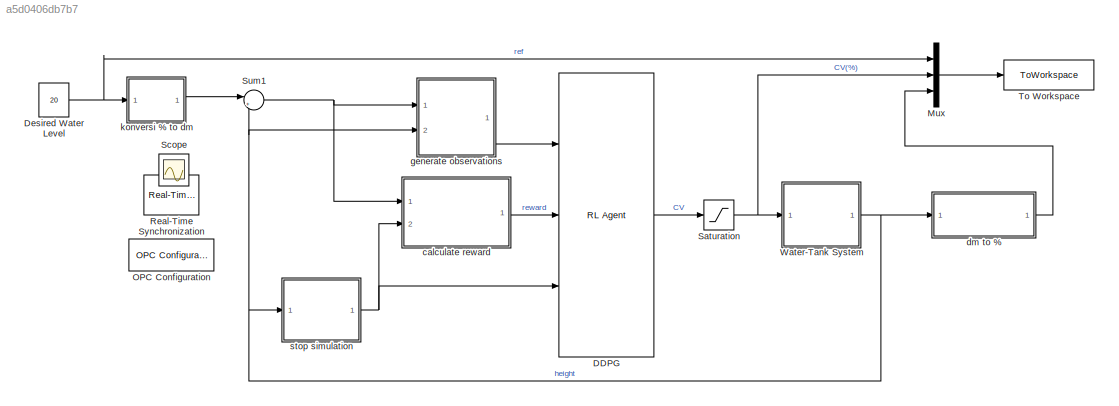
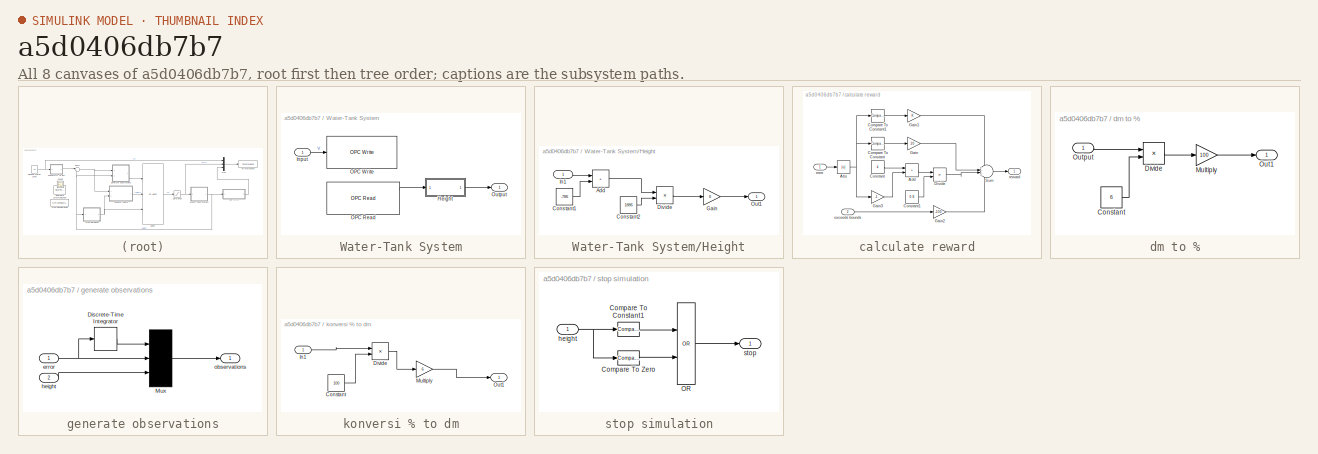
[diagram: thumbnail index - all 8 canvases of the model, root first then tree order]
MODEL slx_a5d0406db7b7
KIND model
CONFIG AbsTol = auto
CONFIG EnableMultiTasking = on
CONFIG FixedStep = auto
CONFIG MaxStep = auto
CONFIG MinStep = auto
CONFIG RelTol = 1e-3
CONFIG SampleTimeConstraint = Unconstrained
CONFIG SolverName = ode45
CONFIG StartTime = 0.0
CONFIG StopTime = inf
BLOCK [Reference] DDPG  REF=rllib/RL Agent
  Ports = [3, 1]
  SourceBlock = rllib/RL Agent
  SourceProductName = Reinforcement Learning
  SourceType = RL Agent
BLOCK [Constant] Desired Water Level
  Value = 20
BLOCK [Mux] Mux
  DisplayOption = bar
  Inputs = 3
  Ports = [3, 1]
BLOCK [Reference] OPC Configuration  REF=opclib/OPC Configuration
  Ports = []
  SourceBlock = opclib/OPC Configuration
  SourceProductBaseCode = OT
  SourceType = OPC Configuration
BLOCK [Reference] Real-Time Synchronization  REF=sldrtlib/Real-Time
Synchronization
  Ports = []
  SourceBlock = sldrtlib/Real-Time\nSynchronization
  SourceProductBaseCode = WT
  SourceType = Simulink Desktop Real-Time Synchronization
BLOCK [Saturate] Saturation
  LowerLimit = 0
  OutMax = 100
  OutMin = 0
  UpperLimit = 100
  ZeroCross = off
BLOCK [Scope] Scope
  Floating = off
  IOType = viewer
  NumInputPorts = 1
  Ports = []
  ScopeSpecificationString = Simulink.scopes.TimeScopeBlockCfg('CurrentConfiguration', extmgr.ConfigurationSet(extmgr.Configuration('Core','General UI',true),extmgr.Configuration('Core','Source UI',true),extmgr.Configuration('Sources','WiredSimulink',true),extmgr.Configuration('Visuals','Time Domain',true,'SerializedDisplays',{struct('MinYLimReal','3.48621','MaxYLimReal','72.54772','YLabelReal','','MinYLimMag','3.48621','MaxY...<+2718ch>
BLOCK [Sum] Sum1
  Inputs = |+-
  Ports = [2, 1]
  SaturateOnIntegerOverflow = on
BLOCK [ToWorkspace] To Workspace
  FixptAsFi = on
  MaxDataPoints = inf
  Ports = [1]
  SampleTime = -1
  SaveFormat = Timeseries
  VariableName = simout
BLOCK [SubSystem] Water-Tank System
  Ports = [1, 1]
  RequestExecContextInheritance = off
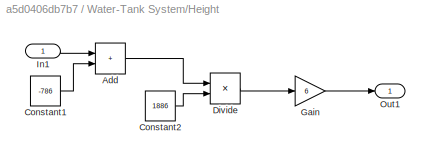
BLOCK [SubSystem] Water-Tank System/Height
  Ports = [1, 1]
  RequestExecContextInheritance = off
BLOCK [Sum] Water-Tank System/Height/Add
  IconShape = rectangular
  Ports = [2, 1]
BLOCK [Constant] Water-Tank System/Height/Constant1
  Value = -786
BLOCK [Constant] Water-Tank System/Height/Constant2
  Value = 1886
BLOCK [Product] Water-Tank System/Height/Divide
  Inputs = */
  Ports = [2, 1]
BLOCK [Gain] Water-Tank System/Height/Gain
  Gain = 6
BLOCK [Inport] Water-Tank System/Height/In1
BLOCK [Outport] Water-Tank System/Height/Out1
BLOCK [Inport] Water-Tank System/Input
BLOCK [Reference] Water-Tank System/OPC Read  REF=opclib/OPC Read
  Ports = [0, 3]
  SourceBlock = opclib/OPC Read
  SourceProductBaseCode = OT
  SourceType = OPC Read
BLOCK [Reference] Water-Tank System/OPC Write  REF=opclib/OPC Write
  Ports = [1]
  SourceBlock = opclib/OPC Write
  SourceProductBaseCode = OT
  SourceType = OPC Write
BLOCK [Outport] Water-Tank System/Output
  VectorParamsAs1DForOutWhenUnconnected = off
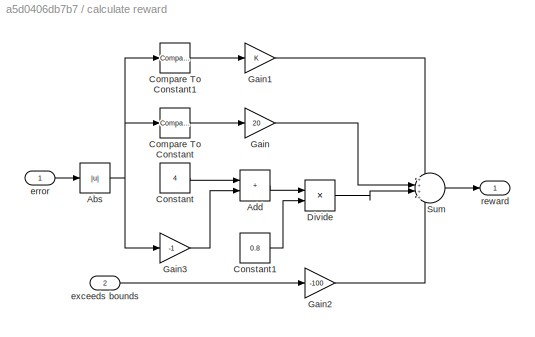
BLOCK [SubSystem] calculate reward
  Ports = [2, 1]
  RequestExecContextInheritance = off
BLOCK [Abs] calculate reward/Abs
  SaturateOnIntegerOverflow = off
  ZeroCross = off
BLOCK [Sum] calculate reward/Add
  IconShape = rectangular
  Ports = [2, 1]
BLOCK [Reference] calculate reward/Compare To Constant  REF=simulink/Logic and Bit
Operations/Compare
To Constant
  Ports = [1, 1]
  SourceBlock = simulink/Logic and Bit\nOperations/Compare\nTo Constant
  SourceProductBaseCode = SL
  SourceType = Compare To Constant
BLOCK [Reference] calculate reward/Compare To Constant1  REF=simulink/Logic and Bit
Operations/Compare
To Constant
  Ports = [1, 1]
  SourceBlock = simulink/Logic and Bit\nOperations/Compare\nTo Constant
  SourceProductBaseCode = SL
  SourceType = Compare To Constant
BLOCK [Constant] calculate reward/Constant
  Value = 4
BLOCK [Constant] calculate reward/Constant1
  Value = 0.8
BLOCK [Product] calculate reward/Divide
  Inputs = */
  Ports = [2, 1]
BLOCK [Gain] calculate reward/Gain
  Gain = 20
BLOCK [Gain] calculate reward/Gain1
BLOCK [Gain] calculate reward/Gain2
  Gain = -100
BLOCK [Gain] calculate reward/Gain3
  Gain = -1
BLOCK [Sum] calculate reward/Sum
  Inputs = ++++
  OutDataTypeStr = double
  Ports = [4, 1]
BLOCK [Inport] calculate reward/error
BLOCK [Inport] calculate reward/exceeds bounds
  Port = 2
BLOCK [Outport] calculate reward/reward
  VectorParamsAs1DForOutWhenUnconnected = off
BLOCK [SubSystem] dm to %
  Ports = [1, 1]
  RequestExecContextInheritance = off
BLOCK [Constant] dm to %/Constant
  Value = 6
BLOCK [Product] dm to %/Divide
  Inputs = */
  Ports = [2, 1]
BLOCK [Gain] dm to %/Multiply
  Gain = 100
BLOCK [Outport] dm to %/Out1
BLOCK [Inport] dm to %/Output
BLOCK [SubSystem] generate observations
  Ports = [2, 1]
  RequestExecContextInheritance = off
BLOCK [DiscreteIntegrator] generate observations/Discrete-Time Integrator
  ICPrevOutput = DiscIntNeverNeededParam
  ICPrevScaledInput = DiscIntNeverNeededParam
  InitialConditionSetting = Auto
  Ports = [1, 1]
BLOCK [Mux] generate observations/Mux
  DisplayOption = bar
  Inputs = 3
  Ports = [3, 1]
BLOCK [Inport] generate observations/error
BLOCK [Inport] generate observations/height
  Port = 2
BLOCK [Outport] generate observations/observations
  VectorParamsAs1DForOutWhenUnconnected = off
BLOCK [SubSystem] konversi % to dm
  Ports = [1, 1]
  RequestExecContextInheritance = off
BLOCK [Constant] konversi % to dm/Constant
  Value = 100
BLOCK [Product] konversi % to dm/Divide
  Inputs = */
  Ports = [2, 1]
BLOCK [Inport] konversi % to dm/In1
BLOCK [Gain] konversi % to dm/Multiply
  Gain = 6
BLOCK [Outport] konversi % to dm/Out1
BLOCK [SubSystem] stop simulation
  Ports = [1, 1]
  RequestExecContextInheritance = off
BLOCK [Reference] stop simulation/Compare To Constant1  REF=simulink/Logic and Bit
Operations/Compare
To Constant
  Ports = [1, 1]
  SourceBlock = simulink/Logic and Bit\nOperations/Compare\nTo Constant
  SourceProductBaseCode = SL
  SourceType = Compare To Constant
BLOCK [Reference] stop simulation/Compare To Zero  REF=simulink/Logic and Bit
Operations/Compare
To Zero
  Ports = [1, 1]
  SourceBlock = simulink/Logic and Bit\nOperations/Compare\nTo Zero
  SourceProductBaseCode = SL
  SourceType = Compare To Zero
BLOCK [Logic] stop simulation/OR
  AllPortsSameDT = off
  IconShape = distinctive
  Operator = OR
  OutDataTypeStr = boolean
  Ports = [2, 1]
BLOCK [Inport] stop simulation/height
BLOCK [Outport] stop simulation/stop
  VectorParamsAs1DForOutWhenUnconnected = off
LINE DDPG:1 -> Saturation:1
NET Desired Water Level:1 -> Mux:1, konversi % to dm:1
LINE Mux:1 -> To Workspace:1
NET Saturation:1 -> Mux:2, Water-Tank System:1
NET Sum1:1 -> calculate reward:1, generate observations:1
LINE Water-Tank System/Height/Add:1 -> Water-Tank System/Height/Divide:1
LINE Water-Tank System/Height/Constant1:1 -> Water-Tank System/Height/Add:2
LINE Water-Tank System/Height/Constant2:1 -> Water-Tank System/Height/Divide:2
LINE Water-Tank System/Height/Divide:1 -> Water-Tank System/Height/Gain:1
LINE Water-Tank System/Height/Gain:1 -> Water-Tank System/Height/Out1:1
LINE Water-Tank System/Height/In1:1 -> Water-Tank System/Height/Add:1
LINE Water-Tank System/Height:1 -> Water-Tank System/Output:1
LINE Water-Tank System/Input:1 -> Water-Tank System/OPC Write:1
LINE Water-Tank System/OPC Read:1 -> Water-Tank System/Height:1
NET Water-Tank System:1 -> Sum1:2, dm to %:1, generate observations:2, stop simulation:1
NET calculate reward/Abs:1 -> calculate reward/Compare To Constant1:1, calculate reward/Compare To Constant:1, calculate reward/Gain3:1
LINE calculate reward/Add:1 -> calculate reward/Divide:1
LINE calculate reward/Compare To Constant1:1 -> calculate reward/Gain1:1
LINE calculate reward/Compare To Constant:1 -> calculate reward/Gain:1
LINE calculate reward/Constant1:1 -> calculate reward/Divide:2
LINE calculate reward/Constant:1 -> calculate reward/Add:1
LINE calculate reward/Divide:1 -> calculate reward/Sum:3
LINE calculate reward/Gain1:1 -> calculate reward/Sum:1
LINE calculate reward/Gain2:1 -> calculate reward/Sum:4
LINE calculate reward/Gain3:1 -> calculate reward/Add:2
LINE calculate reward/Gain:1 -> calculate reward/Sum:2
LINE calculate reward/Sum:1 -> calculate reward/reward:1
LINE calculate reward/error:1 -> calculate reward/Abs:1
LINE calculate reward/exceeds bounds:1 -> calculate reward/Gain2:1
LINE calculate reward:1 -> DDPG:2
LINE dm to %/Constant:1 -> dm to %/Divide:2
LINE dm to %/Divide:1 -> dm to %/Multiply:1
LINE dm to %/Multiply:1 -> dm to %/Out1:1
LINE dm to %/Output:1 -> dm to %/Divide:1
LINE dm to %:1 -> Mux:3
LINE generate observations/Discrete-Time Integrator:1 -> generate observations/Mux:1
LINE generate observations/Mux:1 -> generate observations/observations:1
NET generate observations/error:1 -> generate observations/Discrete-Time Integrator:1, generate observations/Mux:2
LINE generate observations/height:1 -> generate observations/Mux:3
LINE generate observations:1 -> DDPG:1
LINE konversi % to dm/Constant:1 -> konversi % to dm/Divide:2
LINE konversi % to dm/Divide:1 -> konversi % to dm/Multiply:1
LINE konversi % to dm/In1:1 -> konversi % to dm/Divide:1
LINE konversi % to dm/Multiply:1 -> konversi % to dm/Out1:1
LINE konversi % to dm:1 -> Sum1:1
LINE stop simulation/Compare To Constant1:1 -> stop simulation/OR:1
LINE stop simulation/Compare To Zero:1 -> stop simulation/OR:2
LINE stop simulation/OR:1 -> stop simulation/stop:1
NET stop simulation/height:1 -> stop simulation/Compare To Constant1:1, stop simulation/Compare To Zero:1
NET stop simulation:1 -> DDPG:3, calculate reward:2
note: NET lines group one-source signal fan-out (src -> all destinations, sorted); 1:1 wires keep LINE
